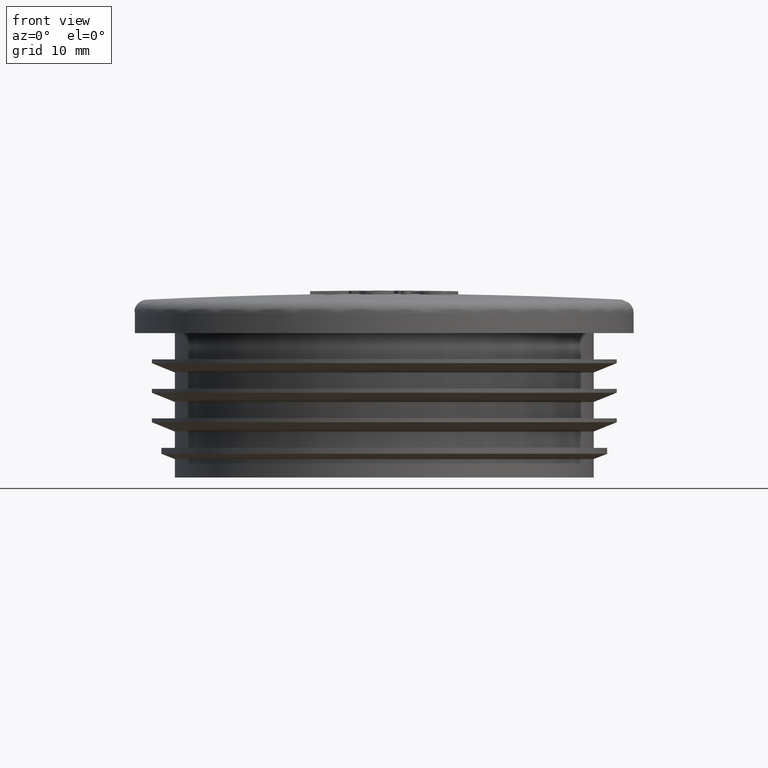
[diagram: clean part render]
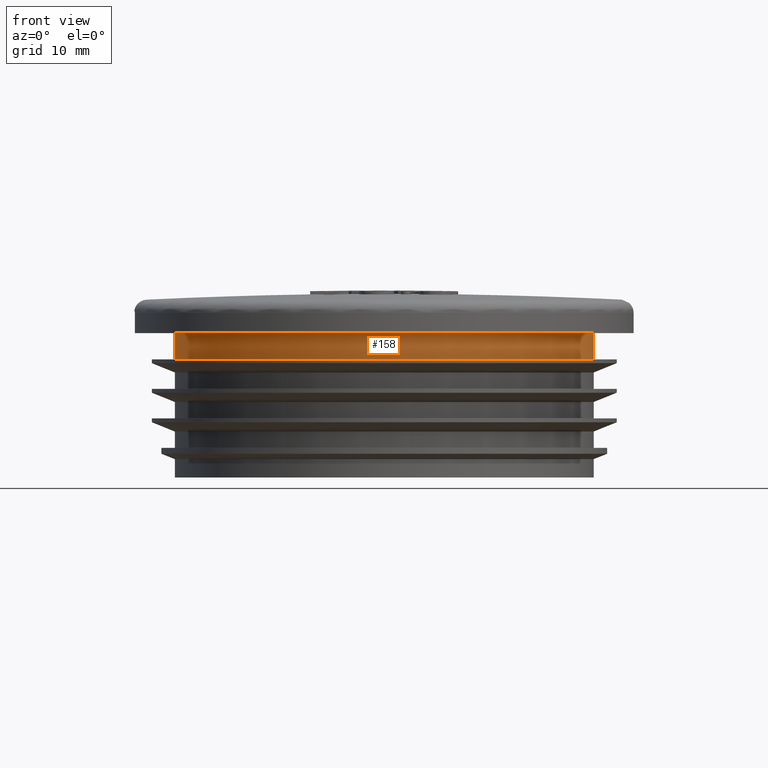
[diagram: same view with one face highlighted and labeled with its STEP entity id]
A machine part, front view. The second image highlights one B-rep face of the part: STEP entity #158.
In plain terms, the highlighted cylindrical surface (bore or boss wall) has radius 31.95 mm, axis along (0, 0, 1).
Its self-contained STEP definition (entity closure, byte-faithful):
#158 = ADVANCED_FACE( '', ( #360, #361 ), #362, .T. );
#360 = FACE_OUTER_BOUND( '', #832, .T. );
#361 = FACE_OUTER_BOUND( '', #833, .T. );
#362 = CYLINDRICAL_SURFACE( '', #834, 31.9500000000000 );
#832 = EDGE_LOOP( '', ( #1516 ) );
#833 = EDGE_LOOP( '', ( #1517 ) );
#834 = AXIS2_PLACEMENT_3D( '', #1518, #1519, #1520 );
#1516 = ORIENTED_EDGE( '', *, *, #1698, .F. );
#1517 = ORIENTED_EDGE( '', *, *, #1699, .T. );
#1518 = CARTESIAN_POINT( '', ( 0.000000000000000, 0.000000000000000, 22.0000000000000 ) );
#1519 = DIRECTION( '', ( 0.000000000000000, 6.12303176911189E-017, 1.00000000000000 ) );
#1520 = DIRECTION( '', ( 0.000000000000000, 1.00000000000000, -6.12303176911189E-017 ) );
#1698 = EDGE_CURVE( '', #1993, #1993, #1994, .T. );
#1699 = EDGE_CURVE( '', #1995, #1995, #1996, .T. );
#1993 = VERTEX_POINT( '', #3345 );
#1994 = CIRCLE( '', #3346, 31.9500000000000 );
#1995 = VERTEX_POINT( '', #3347 );
#1996 = CIRCLE( '', #3348, 31.9500000000000 );
#3345 = CARTESIAN_POINT( '', ( 0.000000000000000, 31.9500000000000, 18.0000000000000 ) );
#3346 = AXIS2_PLACEMENT_3D( '', #3464, #3465, #3466 );
#3347 = CARTESIAN_POINT( '', ( 0.000000000000000, 31.9500000000000, 22.0000000000000 ) );
#3348 = AXIS2_PLACEMENT_3D( '', #3467, #3468, #3469 );
#3464 = CARTESIAN_POINT( '', ( 0.000000000000000, -2.44921270764476E-016, 18.0000000000000 ) );
#3465 = DIRECTION( '', ( 0.000000000000000, -6.12303176911189E-017, -1.00000000000000 ) );
#3466 = DIRECTION( '', ( 0.000000000000000, 1.00000000000000, -6.12303176911189E-017 ) );
#3467 = CARTESIAN_POINT( '', ( 0.000000000000000, 0.000000000000000, 22.0000000000000 ) );
#3468 = DIRECTION( '', ( 0.000000000000000, -6.12303176911189E-017, -1.00000000000000 ) );
#3469 = DIRECTION( '', ( 0.000000000000000, 1.00000000000000, -6.12303176911189E-017 ) );